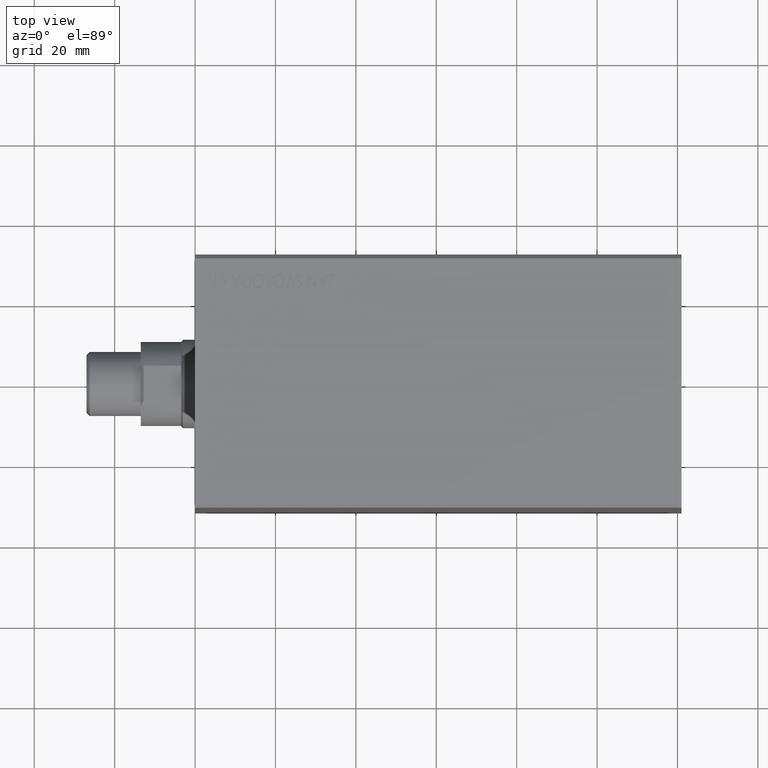
[diagram: clean part render]
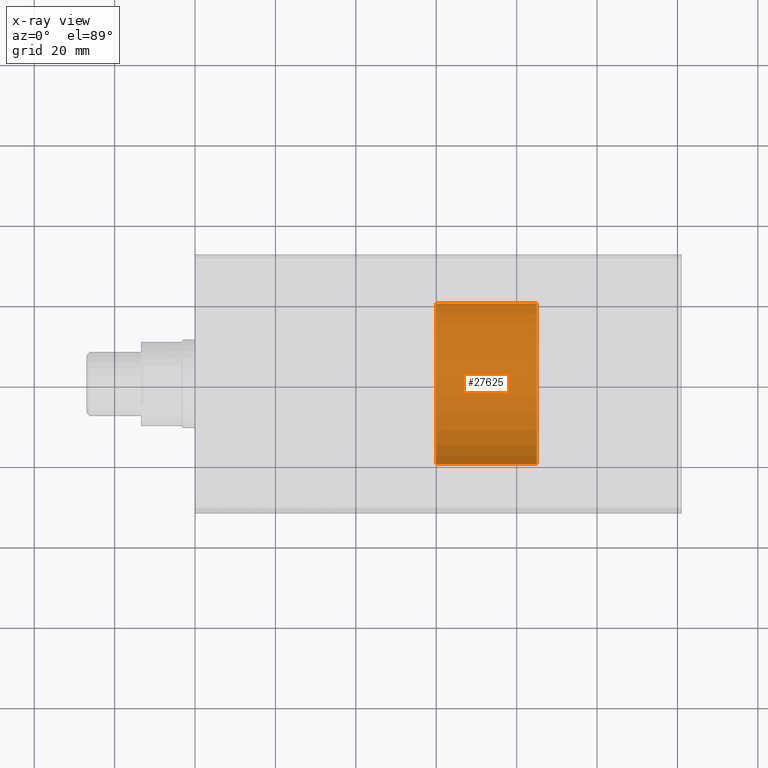
[diagram: x-ray — body ghosted, one internal face saturated and labeled with its STEP entity id]
A machine part, top view, then the same camera in x-ray: the body is ghosted and one INTERNAL B-rep face — a face not visible from any outside direction — is saturated and labeled: STEP entity #27625.
In plain terms, the highlighted cylindrical surface (partial cylindrical patch) has radius 20 mm, axis along (-1, -0, 0).
Its self-contained STEP definition (entity closure, byte-faithful):
#1023 = CYLINDRICAL_SURFACE ( 'NONE', #38684, 19.99999999999999645 ) ;
#2026 = EDGE_CURVE ( 'NONE', #21410, #4414, #21205, .T. ) ;
#2130 = CARTESIAN_POINT ( 'NONE',  ( 0.000000000000000000, -20.00000000000001421, 98.50000000000000000 ) ) ;
#3197 = EDGE_LOOP ( 'NONE', ( #36688, #10221, #35348, #26042 ) ) ;
#3726 = CARTESIAN_POINT ( 'NONE',  ( 0.000000000000000000, -20.00000000000000000, -3.213392237761076998E-15 ) ) ;
#4414 = VERTEX_POINT ( 'NONE', #3726 ) ;
#8812 = VECTOR ( 'NONE', #18326, 1000.000000000000000 ) ;
#10221 = ORIENTED_EDGE ( 'NONE', *, *, #2026, .T. ) ;
#10685 = DIRECTION ( 'NONE',  ( -0.000000000000000000, -1.606696118880538499E-16, 1.000000000000000000 ) ) ;
#10782 = CIRCLE ( 'NONE', #33032, 20.00000000000000000 ) ;
#11136 = FACE_OUTER_BOUND ( 'NONE', #3197, .T. ) ;
#11684 = CARTESIAN_POINT ( 'NONE',  ( 2.449293598294706119E-15, 19.99999999999997868, 98.50000000000000000 ) ) ;
#13189 = CARTESIAN_POINT ( 'NONE',  ( 0.000000000000000000, -20.00000000000000355, 24.99999999999998934 ) ) ;
#13868 = VERTEX_POINT ( 'NONE', #13189 ) ;
#14820 = EDGE_CURVE ( 'NONE', #38885, #13868, #10782, .T. ) ;
#16918 = AXIS2_PLACEMENT_3D ( 'NONE', #22610, #20342, #16971 ) ;
#16971 = DIRECTION ( 'NONE',  ( 0.000000000000000000, -1.000000000000000000, -1.606696118880538499E-16 ) ) ;
#17578 = DIRECTION ( 'NONE',  ( -0.000000000000000000, -1.606696118880538499E-16, 1.000000000000000000 ) ) ;
#18198 = DIRECTION ( 'NONE',  ( -0.000000000000000000, -1.606696118880538499E-16, 1.000000000000000000 ) ) ;
#18326 = DIRECTION ( 'NONE',  ( -0.000000000000000000, -1.606696118880538499E-16, 1.000000000000000000 ) ) ;
#20342 = DIRECTION ( 'NONE',  ( -0.000000000000000000, -1.606696118880538499E-16, 1.000000000000000000 ) ) ;
#21205 = CIRCLE ( 'NONE', #16918, 20.00000000000000000 ) ;
#21410 = VERTEX_POINT ( 'NONE', #22793 ) ;
#21565 = LINE ( 'NONE', #11684, #35915 ) ;
#22610 = CARTESIAN_POINT ( 'NONE',  ( 0.000000000000000000, 0.000000000000000000, 0.000000000000000000 ) ) ;
#22793 = CARTESIAN_POINT ( 'NONE',  ( 2.449293598294706513E-15, 20.00000000000000000, 3.213392237761077787E-15 ) ) ;
#26042 = ORIENTED_EDGE ( 'NONE', *, *, #14820, .F. ) ;
#27625 = ADVANCED_FACE ( 'NONE', ( #11136 ), #1023, .T. ) ;
#31532 = DIRECTION ( 'NONE',  ( 0.000000000000000000, -1.000000000000000000, -1.734723475976807094E-16 ) ) ;
#32496 = LINE ( 'NONE', #2130, #8812 ) ;
#33032 = AXIS2_PLACEMENT_3D ( 'NONE', #40988, #17578, #31532 ) ;
#33389 = EDGE_CURVE ( 'NONE', #21410, #38885, #21565, .T. ) ;
#35348 = ORIENTED_EDGE ( 'NONE', *, *, #43804, .T. ) ;
#35915 = VECTOR ( 'NONE', #18198, 1000.000000000000000 ) ;
#36688 = ORIENTED_EDGE ( 'NONE', *, *, #33389, .F. ) ;
#38094 = CARTESIAN_POINT ( 'NONE',  ( 2.449293598294706119E-15, 19.99999999999999645, 24.99999999999999645 ) ) ;
#38129 = DIRECTION ( 'NONE',  ( 0.000000000000000000, -1.000000000000000000, 0.000000000000000000 ) ) ;
#38684 = AXIS2_PLACEMENT_3D ( 'NONE', #41494, #10685, #38129 ) ;
#38885 = VERTEX_POINT ( 'NONE', #38094 ) ;
#40988 = CARTESIAN_POINT ( 'NONE',  ( 0.000000000000000000, -4.016740297201344571E-15, 24.99999999999999289 ) ) ;
#41494 = CARTESIAN_POINT ( 'NONE',  ( 0.000000000000000000, -1.582595677097330397E-14, 98.50000000000000000 ) ) ;
#43804 = EDGE_CURVE ( 'NONE', #4414, #13868, #32496, .T. ) ;